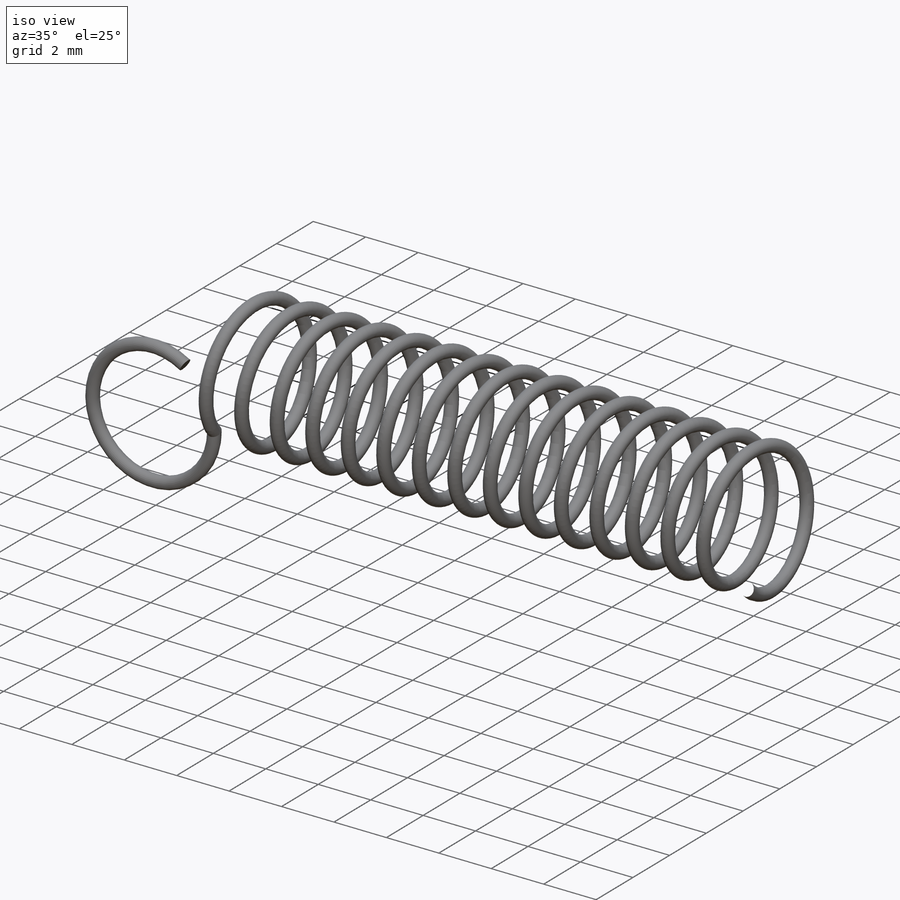
[diagram: iso view]
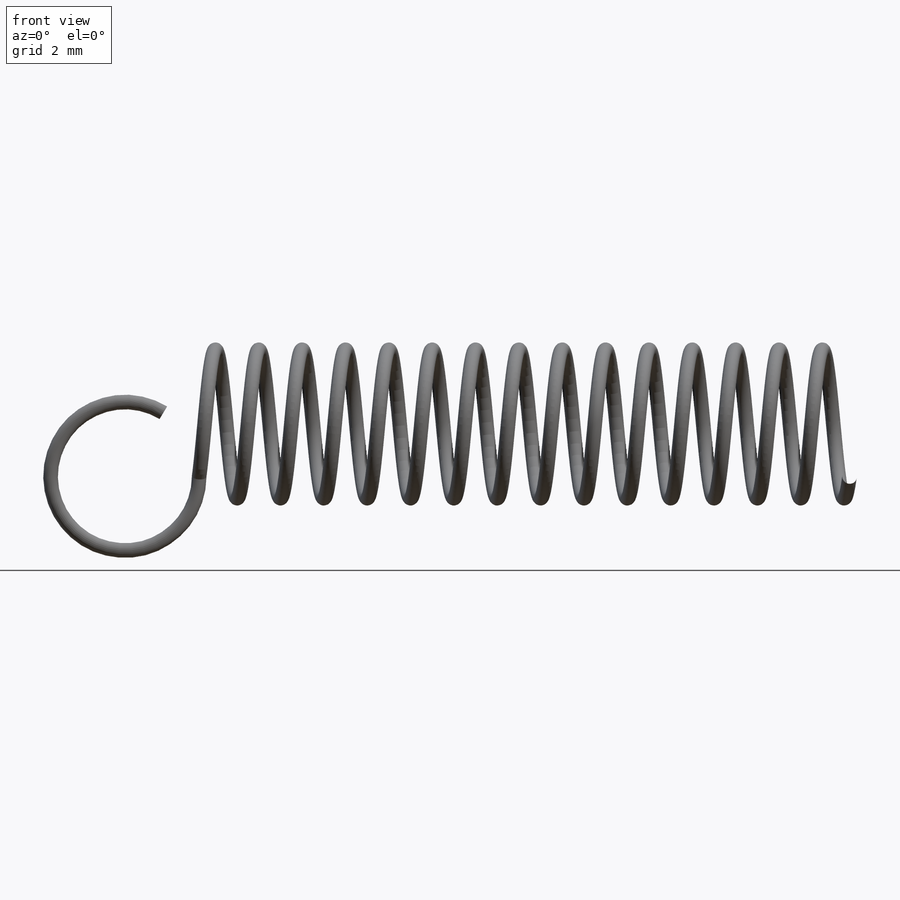
[diagram: front view]
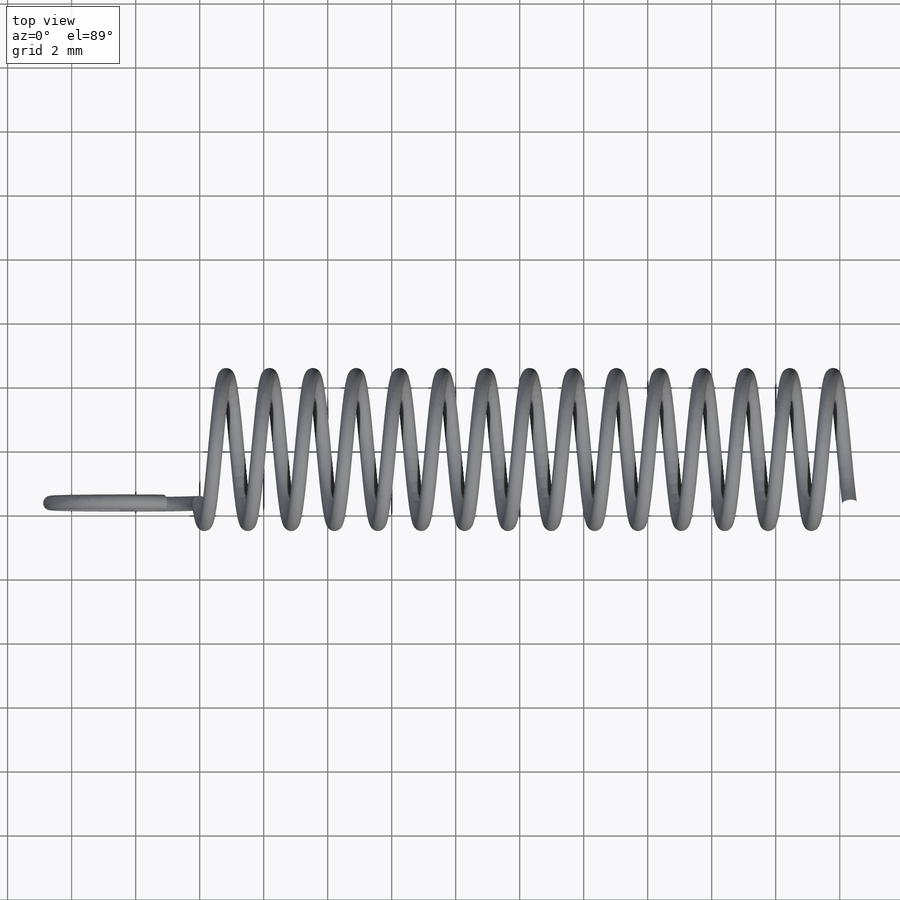
[diagram: top view]
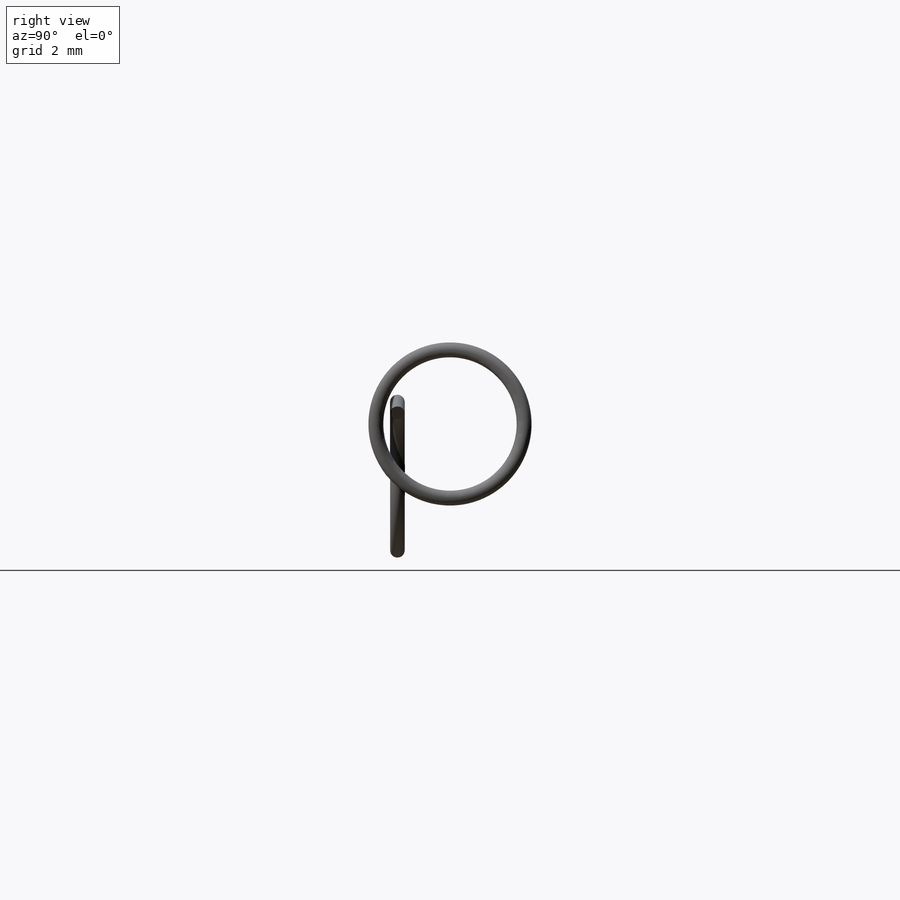
[diagram: right view]
SOLIDWORKS PART (.sldprt)
format: sldprt  version: not decoded by parser v0  size: 1,599,488 bytes
history: native  units: mm
features: sketch x4, plane x4, material x1, helix x1, sweep x1 (+13 scaffold rows collapsed)
feature tree (24):
  scaffold x13  (default folders/planes/origin — collapsed)
  material  "Material <not specified>"
  sketch  "Sketch2"  dims[D1=4.6228mm]
  helix  "Helix/Spiral1"  Pitch=20.32mm
  plane  "Plane3"
  sketch  "Sketch4"  dims[D1=2.3368mm]
  plane  "Plane4"
  sketch  "Sketch5"  dims[D1=2.3368mm]
  plane  "Plane5"
  plane  "Plane8"
  sketch  "Sketch9"  dims[D1=0.4572mm]
  sweep  "Sweep2"
decode coverage: 5 of 6 modeling features carry decoded parameters
note: suppression state not decoded; provenance and decode notes live in map.json
